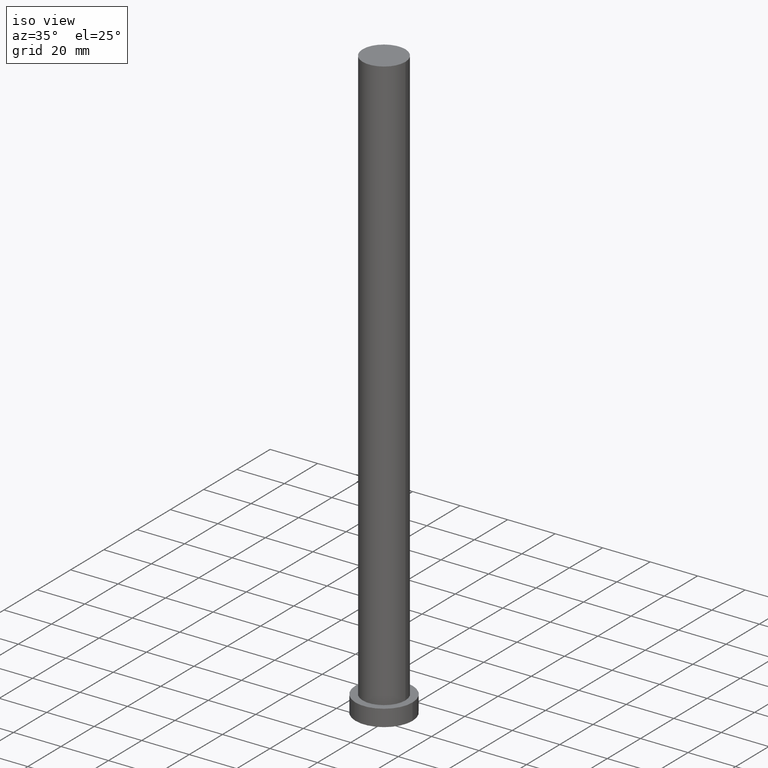
[diagram: clean part render]
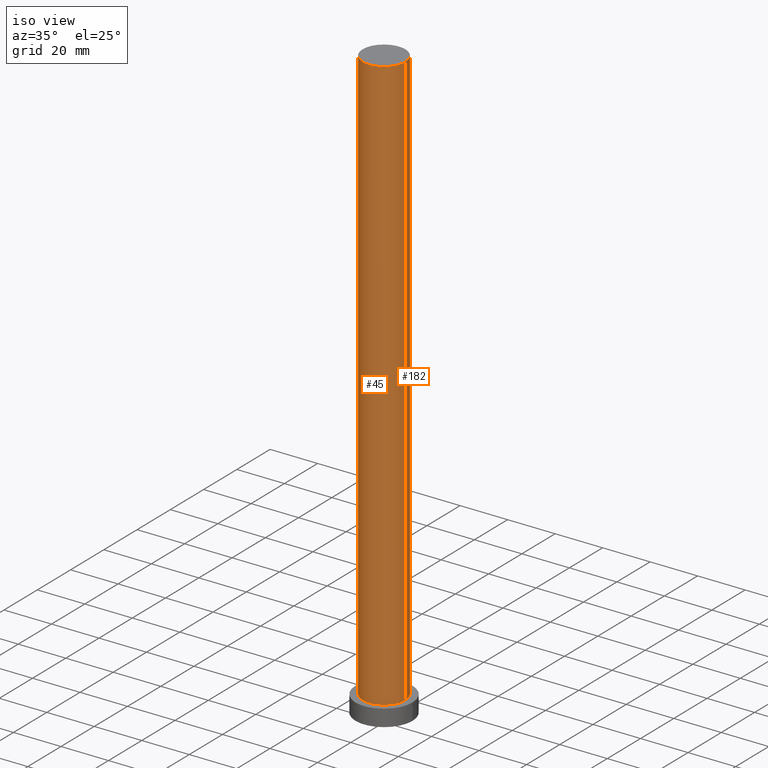
[diagram: same view with one multi-face feature highlighted, each face labeled with its STEP entity id]
A machine part, iso view. The highlighted faces form ONE feature: a constant-radius fillet chain: 2 tangent blend faces with common blend radius 9 mm. The faces share edges in the B-rep.
Their STEP definitions:
[1] entity #45 (Cylinder):
#1 = CIRCLE ( 'NONE', #146, 9.000000000000000000 ) ;
#2 = CARTESIAN_POINT ( 'NONE',  ( 0.000000000000000000, 0.000000000000000000, 250.0000000000000000 ) ) ;
#3 = CARTESIAN_POINT ( 'NONE',  ( 9.000000000000000000, 1.102182119232617714E-15, 7.000000000000000000 ) ) ;
#15 = ORIENTED_EDGE ( 'NONE', *, *, #231, .T. ) ;
#17 = EDGE_CURVE ( 'NONE', #89, #27, #205, .T. ) ;
#27 = VERTEX_POINT ( 'NONE', #80 ) ;
#35 = DIRECTION ( 'NONE',  ( -0.000000000000000000, -0.000000000000000000, -1.000000000000000000 ) ) ;
#36 = DIRECTION ( 'NONE',  ( 0.000000000000000000, 0.000000000000000000, 1.000000000000000000 ) ) ;
#41 = CARTESIAN_POINT ( 'NONE',  ( -9.000000000000000000, 0.000000000000000000, 7.000000000000000000 ) ) ;
#45 = ADVANCED_FACE ( 'NONE', ( #83 ), #121, .T. ) ;
#53 = DIRECTION ( 'NONE',  ( -0.000000000000000000, -0.000000000000000000, -1.000000000000000000 ) ) ;
#80 = CARTESIAN_POINT ( 'NONE',  ( 9.000000000000000000, 1.102182119232617714E-15, 250.0000000000000000 ) ) ;
#83 = FACE_OUTER_BOUND ( 'NONE', #188, .T. ) ;
#85 = DIRECTION ( 'NONE',  ( 0.000000000000000000, 0.000000000000000000, 1.000000000000000000 ) ) ;
#89 = VERTEX_POINT ( 'NONE', #132 ) ;
#90 = ORIENTED_EDGE ( 'NONE', *, *, #199, .T. ) ;
#96 = CARTESIAN_POINT ( 'NONE',  ( -9.000000000000000000, 0.000000000000000000, 250.0000000000000000 ) ) ;
#100 = DIRECTION ( 'NONE',  ( -1.000000000000000000, 0.000000000000000000, 0.000000000000000000 ) ) ;
#117 = LINE ( 'NONE', #96, #201 ) ;
#120 = VECTOR ( 'NONE', #35, 1000.000000000000000 ) ;
#121 = CYLINDRICAL_SURFACE ( 'NONE', #158, 9.000000000000000000 ) ;
#126 = DIRECTION ( 'NONE',  ( 1.000000000000000000, 0.000000000000000000, 0.000000000000000000 ) ) ;
#132 = CARTESIAN_POINT ( 'NONE',  ( -9.000000000000000000, 0.000000000000000000, 250.0000000000000000 ) ) ;
#141 = CARTESIAN_POINT ( 'NONE',  ( 0.000000000000000000, 0.000000000000000000, 7.000000000000000000 ) ) ;
#145 = VERTEX_POINT ( 'NONE', #3 ) ;
#146 = AXIS2_PLACEMENT_3D ( 'NONE', #141, #85, #126 ) ;
#149 = VERTEX_POINT ( 'NONE', #41 ) ;
#154 = AXIS2_PLACEMENT_3D ( 'NONE', #2, #36, #172 ) ;
#158 = AXIS2_PLACEMENT_3D ( 'NONE', #216, #53, #100 ) ;
#172 = DIRECTION ( 'NONE',  ( 1.000000000000000000, 0.000000000000000000, 0.000000000000000000 ) ) ;
#176 = LINE ( 'NONE', #215, #120 ) ;
#188 = EDGE_LOOP ( 'NONE', ( #225, #190, #90, #15 ) ) ;
#190 = ORIENTED_EDGE ( 'NONE', *, *, #17, .F. ) ;
#196 = EDGE_CURVE ( 'NONE', #27, #145, #176, .T. ) ;
#199 = EDGE_CURVE ( 'NONE', #89, #149, #117, .T. ) ;
#201 = VECTOR ( 'NONE', #255, 1000.000000000000000 ) ;
#205 = CIRCLE ( 'NONE', #154, 9.000000000000000000 ) ;
#215 = CARTESIAN_POINT ( 'NONE',  ( 9.000000000000000000, 1.102182119232617714E-15, 250.0000000000000000 ) ) ;
#216 = CARTESIAN_POINT ( 'NONE',  ( 0.000000000000000000, 0.000000000000000000, 250.0000000000000000 ) ) ;
#225 = ORIENTED_EDGE ( 'NONE', *, *, #196, .F. ) ;
#231 = EDGE_CURVE ( 'NONE', #149, #145, #1, .T. ) ;
#255 = DIRECTION ( 'NONE',  ( -0.000000000000000000, -0.000000000000000000, -1.000000000000000000 ) ) ;
[2] entity #182 (Cylinder):
#3 = CARTESIAN_POINT ( 'NONE',  ( 9.000000000000000000, 1.102182119232617714E-15, 7.000000000000000000 ) ) ;
#12 = ORIENTED_EDGE ( 'NONE', *, *, #199, .F. ) ;
#19 = CYLINDRICAL_SURFACE ( 'NONE', #82, 9.000000000000000000 ) ;
#21 = CARTESIAN_POINT ( 'NONE',  ( 0.000000000000000000, 0.000000000000000000, 250.0000000000000000 ) ) ;
#27 = VERTEX_POINT ( 'NONE', #80 ) ;
#28 = CIRCLE ( 'NONE', #91, 9.000000000000000000 ) ;
#35 = DIRECTION ( 'NONE',  ( -0.000000000000000000, -0.000000000000000000, -1.000000000000000000 ) ) ;
#40 = DIRECTION ( 'NONE',  ( 0.000000000000000000, 0.000000000000000000, 1.000000000000000000 ) ) ;
#41 = CARTESIAN_POINT ( 'NONE',  ( -9.000000000000000000, 0.000000000000000000, 7.000000000000000000 ) ) ;
#80 = CARTESIAN_POINT ( 'NONE',  ( 9.000000000000000000, 1.102182119232617714E-15, 250.0000000000000000 ) ) ;
#82 = AXIS2_PLACEMENT_3D ( 'NONE', #99, #174, #153 ) ;
#89 = VERTEX_POINT ( 'NONE', #132 ) ;
#91 = AXIS2_PLACEMENT_3D ( 'NONE', #184, #222, #102 ) ;
#96 = CARTESIAN_POINT ( 'NONE',  ( -9.000000000000000000, 0.000000000000000000, 250.0000000000000000 ) ) ;
#99 = CARTESIAN_POINT ( 'NONE',  ( 0.000000000000000000, 0.000000000000000000, 250.0000000000000000 ) ) ;
#102 = DIRECTION ( 'NONE',  ( 1.000000000000000000, 0.000000000000000000, 0.000000000000000000 ) ) ;
#117 = LINE ( 'NONE', #96, #201 ) ;
#120 = VECTOR ( 'NONE', #35, 1000.000000000000000 ) ;
#132 = CARTESIAN_POINT ( 'NONE',  ( -9.000000000000000000, 0.000000000000000000, 250.0000000000000000 ) ) ;
#143 = CIRCLE ( 'NONE', #179, 9.000000000000000000 ) ;
#145 = VERTEX_POINT ( 'NONE', #3 ) ;
#147 = ORIENTED_EDGE ( 'NONE', *, *, #150, .F. ) ;
#149 = VERTEX_POINT ( 'NONE', #41 ) ;
#150 = EDGE_CURVE ( 'NONE', #27, #89, #143, .T. ) ;
#153 = DIRECTION ( 'NONE',  ( -1.000000000000000000, 0.000000000000000000, 0.000000000000000000 ) ) ;
#168 = ORIENTED_EDGE ( 'NONE', *, *, #240, .T. ) ;
#174 = DIRECTION ( 'NONE',  ( -0.000000000000000000, -0.000000000000000000, -1.000000000000000000 ) ) ;
#176 = LINE ( 'NONE', #215, #120 ) ;
#177 = DIRECTION ( 'NONE',  ( 1.000000000000000000, 0.000000000000000000, 0.000000000000000000 ) ) ;
#179 = AXIS2_PLACEMENT_3D ( 'NONE', #21, #40, #177 ) ;
#182 = ADVANCED_FACE ( 'NONE', ( #220 ), #19, .T. ) ;
#184 = CARTESIAN_POINT ( 'NONE',  ( 0.000000000000000000, 0.000000000000000000, 7.000000000000000000 ) ) ;
#196 = EDGE_CURVE ( 'NONE', #27, #145, #176, .T. ) ;
#199 = EDGE_CURVE ( 'NONE', #89, #149, #117, .T. ) ;
#201 = VECTOR ( 'NONE', #255, 1000.000000000000000 ) ;
#204 = ORIENTED_EDGE ( 'NONE', *, *, #196, .T. ) ;
#210 = EDGE_LOOP ( 'NONE', ( #147, #204, #168, #12 ) ) ;
#215 = CARTESIAN_POINT ( 'NONE',  ( 9.000000000000000000, 1.102182119232617714E-15, 250.0000000000000000 ) ) ;
#220 = FACE_OUTER_BOUND ( 'NONE', #210, .T. ) ;
#222 = DIRECTION ( 'NONE',  ( 0.000000000000000000, 0.000000000000000000, 1.000000000000000000 ) ) ;
#240 = EDGE_CURVE ( 'NONE', #145, #149, #28, .T. ) ;
#255 = DIRECTION ( 'NONE',  ( -0.000000000000000000, -0.000000000000000000, -1.000000000000000000 ) ) ;